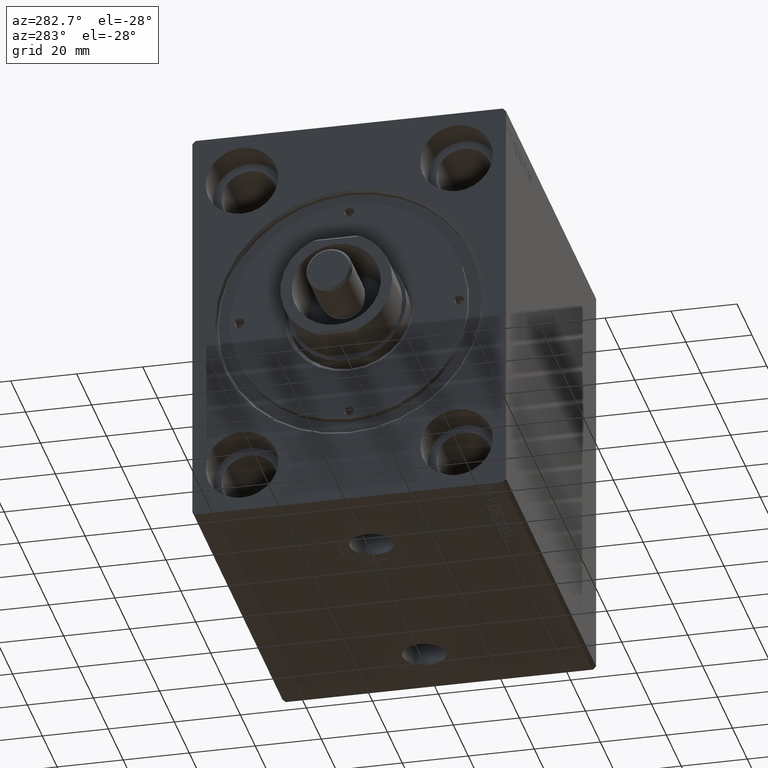
[diagram: clean part render]
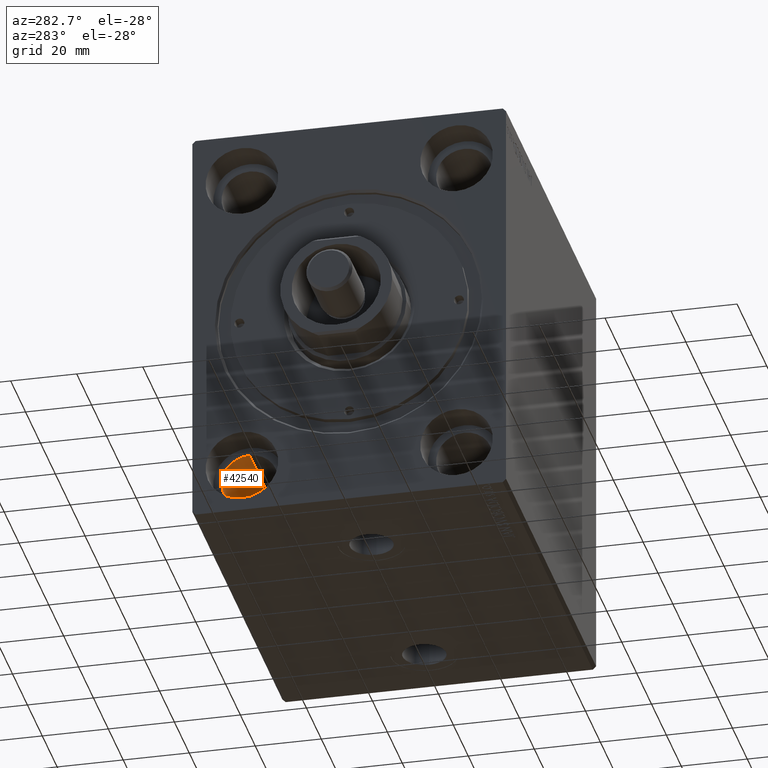
[diagram: same view with one face highlighted and labeled with its STEP entity id]
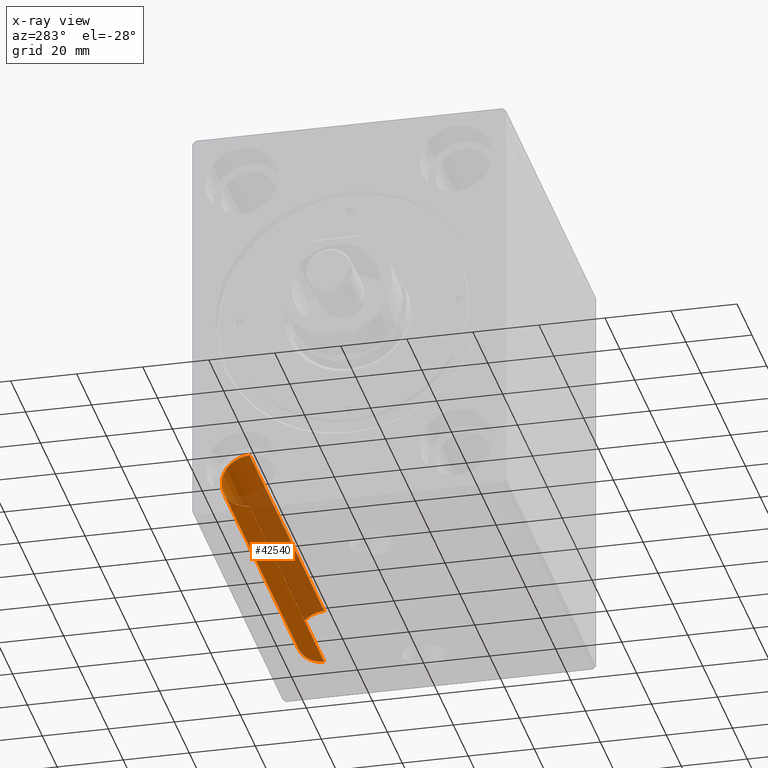
[diagram: x-ray of the same camera — body ghosted, the highlighted face saturated]
A machine part, auxiliary view. The second image highlights one B-rep face of the part: STEP entity #42540.
The next image is the same camera in x-ray: the body ghosted, the highlighted face saturated — about 42% of this face is hidden behind the body in this view.
In plain terms, the highlighted cylindrical surface (edge-blend (fillet) strip) has radius 8.5 mm, axis along (-1, -0, -0).
Its self-contained STEP definition (entity closure, byte-faithful):
#189 = VERTEX_POINT ( 'NONE', #18009 ) ;
#716 = EDGE_CURVE ( 'NONE', #7976, #36935, #4270, .T. ) ;
#1046 = LINE ( 'NONE', #28248, #16493 ) ;
#2390 = DIRECTION ( 'NONE',  ( -1.000000000000000000, -0.000000000000000000, -0.000000000000000000 ) ) ;
#2719 = DIRECTION ( 'NONE',  ( 0.000000000000000000, 0.000000000000000000, 1.000000000000000000 ) ) ;
#3956 = LINE ( 'NONE', #27789, #31175 ) ;
#4270 = CIRCLE ( 'NONE', #29409, 8.499999999999992895 ) ;
#5006 = ORIENTED_EDGE ( 'NONE', *, *, #34063, .F. ) ;
#5252 = VERTEX_POINT ( 'NONE', #23880 ) ;
#6006 = DIRECTION ( 'NONE',  ( 0.000000000000000000, 0.000000000000000000, 1.000000000000000000 ) ) ;
#7976 = VERTEX_POINT ( 'NONE', #37876 ) ;
#9799 = CARTESIAN_POINT ( 'NONE',  ( 110.6699999999999875, 32.50000000000000000, -39.00000000000000711 ) ) ;
#12102 = DIRECTION ( 'NONE',  ( 0.000000000000000000, 0.000000000000000000, -1.000000000000000000 ) ) ;
#12331 = DIRECTION ( 'NONE',  ( 1.000000000000000000, 0.000000000000000000, 0.000000000000000000 ) ) ;
#15000 = CIRCLE ( 'NONE', #37276, 8.499999999999992895 ) ;
#16493 = VECTOR ( 'NONE', #41979, 1000.000000000000000 ) ;
#17284 = ORIENTED_EDGE ( 'NONE', *, *, #19184, .T. ) ;
#18009 = CARTESIAN_POINT ( 'NONE',  ( 10.33000000000000540, 32.50000000000000000, -55.99999999999999289 ) ) ;
#18446 = EDGE_LOOP ( 'NONE', ( #5006, #19171, #17284, #32175 ) ) ;
#19171 = ORIENTED_EDGE ( 'NONE', *, *, #716, .T. ) ;
#19184 = EDGE_CURVE ( 'NONE', #36935, #5252, #3956, .T. ) ;
#19827 = DIRECTION ( 'NONE',  ( -1.000000000000000000, 0.000000000000000000, 0.000000000000000000 ) ) ;
#19927 = FACE_OUTER_BOUND ( 'NONE', #18446, .T. ) ;
#23084 = CYLINDRICAL_SURFACE ( 'NONE', #34347, 8.499999999999992895 ) ;
#23880 = CARTESIAN_POINT ( 'NONE',  ( 10.33000000000000540, 32.50000000000000000, -39.00000000000000711 ) ) ;
#27789 = CARTESIAN_POINT ( 'NONE',  ( 121.0000000000000000, 32.50000000000000000, -39.00000000000000711 ) ) ;
#28248 = CARTESIAN_POINT ( 'NONE',  ( 121.0000000000000000, 32.50000000000000000, -55.99999999999999289 ) ) ;
#29409 = AXIS2_PLACEMENT_3D ( 'NONE', #42911, #12331, #12102 ) ;
#31175 = VECTOR ( 'NONE', #37705, 1000.000000000000000 ) ;
#32175 = ORIENTED_EDGE ( 'NONE', *, *, #44148, .T. ) ;
#34063 = EDGE_CURVE ( 'NONE', #7976, #189, #1046, .T. ) ;
#34347 = AXIS2_PLACEMENT_3D ( 'NONE', #36812, #2390, #6006 ) ;
#36812 = CARTESIAN_POINT ( 'NONE',  ( 121.0000000000000000, 32.50000000000000000, -47.50000000000000000 ) ) ;
#36935 = VERTEX_POINT ( 'NONE', #9799 ) ;
#37276 = AXIS2_PLACEMENT_3D ( 'NONE', #40735, #19827, #2719 ) ;
#37705 = DIRECTION ( 'NONE',  ( -1.000000000000000000, -0.000000000000000000, -0.000000000000000000 ) ) ;
#37876 = CARTESIAN_POINT ( 'NONE',  ( 110.6699999999999875, 32.50000000000000000, -55.99999999999999289 ) ) ;
#40735 = CARTESIAN_POINT ( 'NONE',  ( 10.33000000000000540, 32.50000000000000000, -47.50000000000000000 ) ) ;
#41979 = DIRECTION ( 'NONE',  ( -1.000000000000000000, -0.000000000000000000, -0.000000000000000000 ) ) ;
#42540 = ADVANCED_FACE ( 'NONE', ( #19927 ), #23084, .F. ) ;
#42911 = CARTESIAN_POINT ( 'NONE',  ( 110.6699999999999875, 32.50000000000000000, -47.50000000000000000 ) ) ;
#44148 = EDGE_CURVE ( 'NONE', #5252, #189, #15000, .T. ) ;